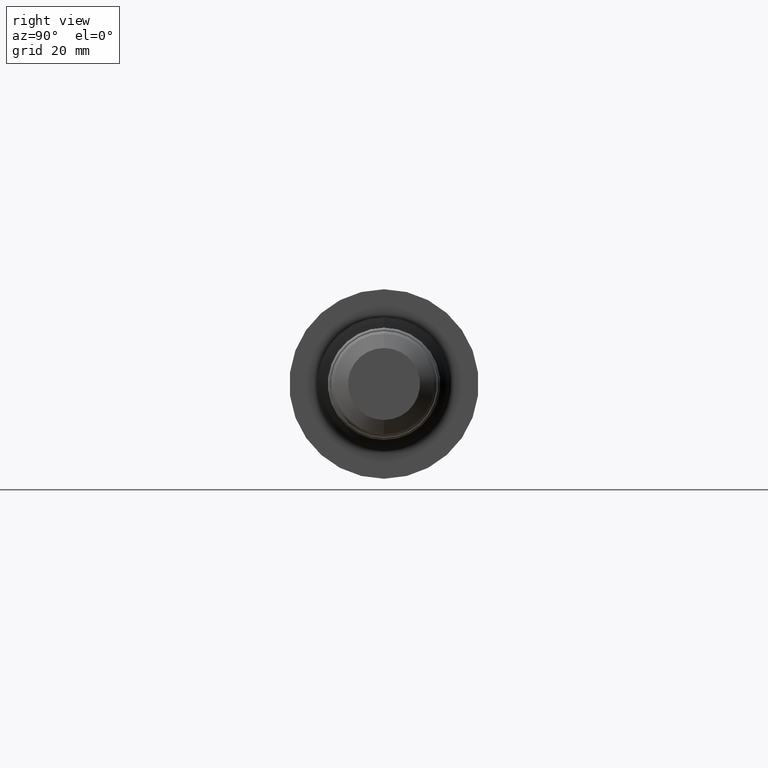
[diagram: clean part render]
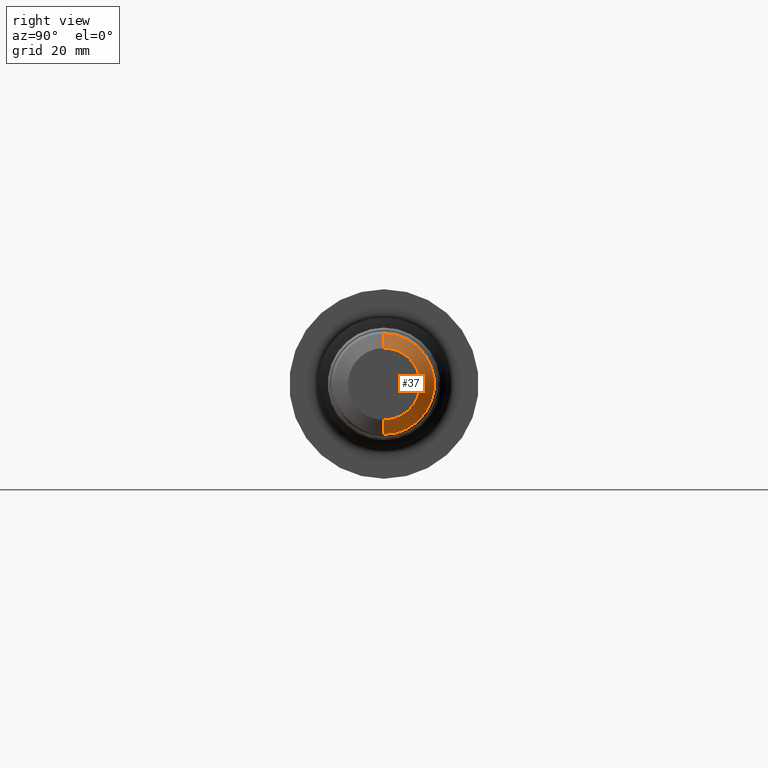
[diagram: same view with one face highlighted and labeled with its STEP entity id]
A machine part, right view. The second image highlights one B-rep face of the part: STEP entity #37.
In plain terms, the highlighted conical surface has half-angle 60 deg.
Its self-contained STEP definition (entity closure, byte-faithful):
#3 = CARTESIAN_POINT ( 'NONE',  ( 5.750000000000000000, 0.0000000000000000000, 0.0000000000000000000 ) ) ;
#13 = CARTESIAN_POINT ( 'NONE',  ( 5.679999999999999716, 5.209647483572839855E-17, -0.4254000000000000004 ) ) ;
#17 = AXIS2_PLACEMENT_3D ( 'NONE', #3, #269, #274 ) ;
#21 = LINE ( 'NONE', #558, #405 ) ;
#28 = ORIENTED_EDGE ( 'NONE', *, *, #419, .F. ) ;
#37 = ADVANCED_FACE ( 'NONE', ( #743 ), #650, .T. ) ;
#116 = VERTEX_POINT ( 'NONE', #13 ) ;
#133 = DIRECTION ( 'NONE',  ( 0.0000000000000000000, 0.0000000000000000000, 1.000000000000000000 ) ) ;
#166 = EDGE_CURVE ( 'NONE', #742, #116, #259, .T. ) ;
#217 = EDGE_LOOP ( 'NONE', ( #353, #706, #939, #28 ) ) ;
#259 = LINE ( 'NONE', #623, #823 ) ;
#260 = CARTESIAN_POINT ( 'NONE',  ( 5.750000000000000000, 4.467244816465400725E-17, -0.3041564434701778397 ) ) ;
#269 = DIRECTION ( 'NONE',  ( -1.000000000000000000, -0.0000000000000000000, -0.0000000000000000000 ) ) ;
#274 = DIRECTION ( 'NONE',  ( 0.0000000000000000000, 0.0000000000000000000, 1.000000000000000000 ) ) ;
#353 = ORIENTED_EDGE ( 'NONE', *, *, #680, .T. ) ;
#405 = VECTOR ( 'NONE', #604, 39.37007874015748854 ) ;
#419 = EDGE_CURVE ( 'NONE', #613, #572, #21, .T. ) ;
#457 = CIRCLE ( 'NONE', #17, 0.3041564434701778397 ) ;
#483 = CARTESIAN_POINT ( 'NONE',  ( 5.750000000000000000, 0.0000000000000000000, 0.3041564434701778397 ) ) ;
#528 = EDGE_CURVE ( 'NONE', #572, #116, #530, .T. ) ;
#530 = CIRCLE ( 'NONE', #767, 0.4254000000000000004 ) ;
#544 = AXIS2_PLACEMENT_3D ( 'NONE', #908, #968, #133 ) ;
#550 = CARTESIAN_POINT ( 'NONE',  ( 5.679999999999999716, 0.0000000000000000000, 0.0000000000000000000 ) ) ;
#552 = DIRECTION ( 'NONE',  ( -0.4999999999999979461, 1.060575238724908024E-16, -0.8660254037844397068 ) ) ;
#558 = CARTESIAN_POINT ( 'NONE',  ( 5.750000000000000000, 0.0000000000000000000, 0.3041564434701778397 ) ) ;
#572 = VERTEX_POINT ( 'NONE', #614 ) ;
#604 = DIRECTION ( 'NONE',  ( -0.4999999999999979461, 0.0000000000000000000, 0.8660254037844397068 ) ) ;
#613 = VERTEX_POINT ( 'NONE', #483 ) ;
#614 = CARTESIAN_POINT ( 'NONE',  ( 5.679999999999999716, 0.0000000000000000000, 0.4254000000000000004 ) ) ;
#623 = CARTESIAN_POINT ( 'NONE',  ( 5.750000000000000000, 3.724842149357960979E-17, -0.3041564434701778397 ) ) ;
#637 = DIRECTION ( 'NONE',  ( 0.0000000000000000000, 0.0000000000000000000, 1.000000000000000000 ) ) ;
#650 = CONICAL_SURFACE ( 'NONE', #544, 0.3041564434701778397, 1.047197551196600074 ) ;
#680 = EDGE_CURVE ( 'NONE', #613, #742, #457, .T. ) ;
#706 = ORIENTED_EDGE ( 'NONE', *, *, #166, .T. ) ;
#742 = VERTEX_POINT ( 'NONE', #260 ) ;
#743 = FACE_OUTER_BOUND ( 'NONE', #217, .T. ) ;
#767 = AXIS2_PLACEMENT_3D ( 'NONE', #550, #771, #637 ) ;
#771 = DIRECTION ( 'NONE',  ( -1.000000000000000000, -0.0000000000000000000, -0.0000000000000000000 ) ) ;
#823 = VECTOR ( 'NONE', #552, 39.37007874015748854 ) ;
#908 = CARTESIAN_POINT ( 'NONE',  ( 5.750000000000000000, 0.0000000000000000000, 0.0000000000000000000 ) ) ;
#939 = ORIENTED_EDGE ( 'NONE', *, *, #528, .F. ) ;
#968 = DIRECTION ( 'NONE',  ( -1.000000000000000000, -0.0000000000000000000, -0.0000000000000000000 ) ) ;